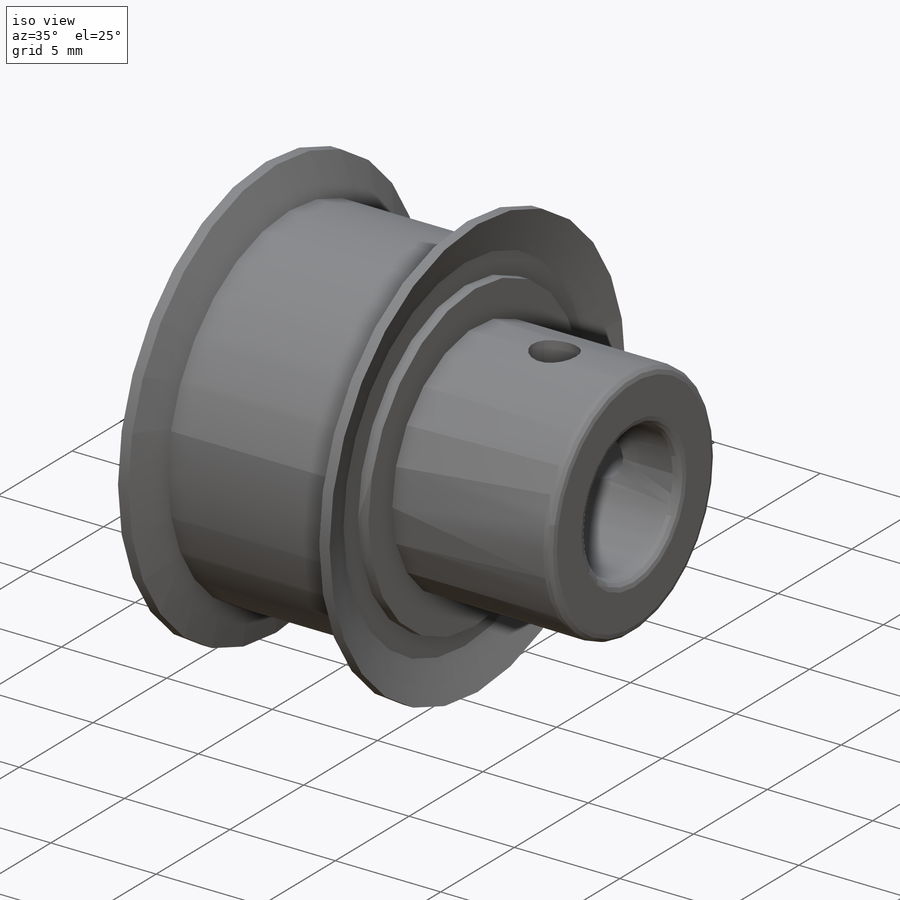
[diagram: iso view]
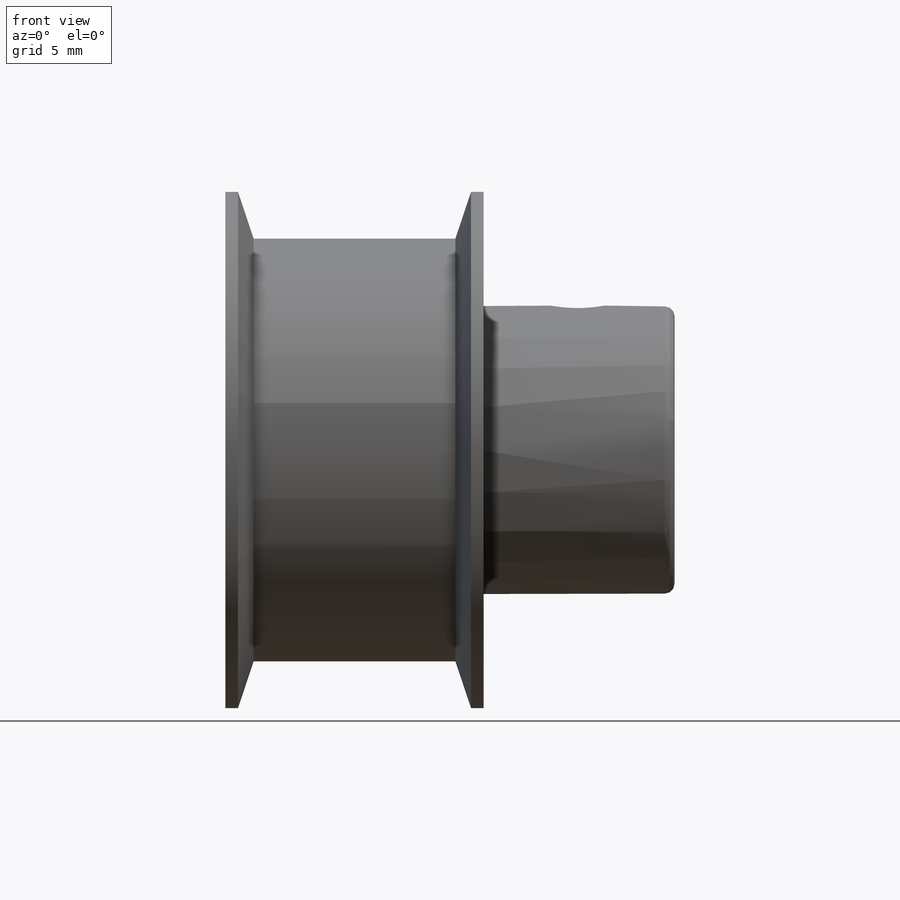
[diagram: front view]
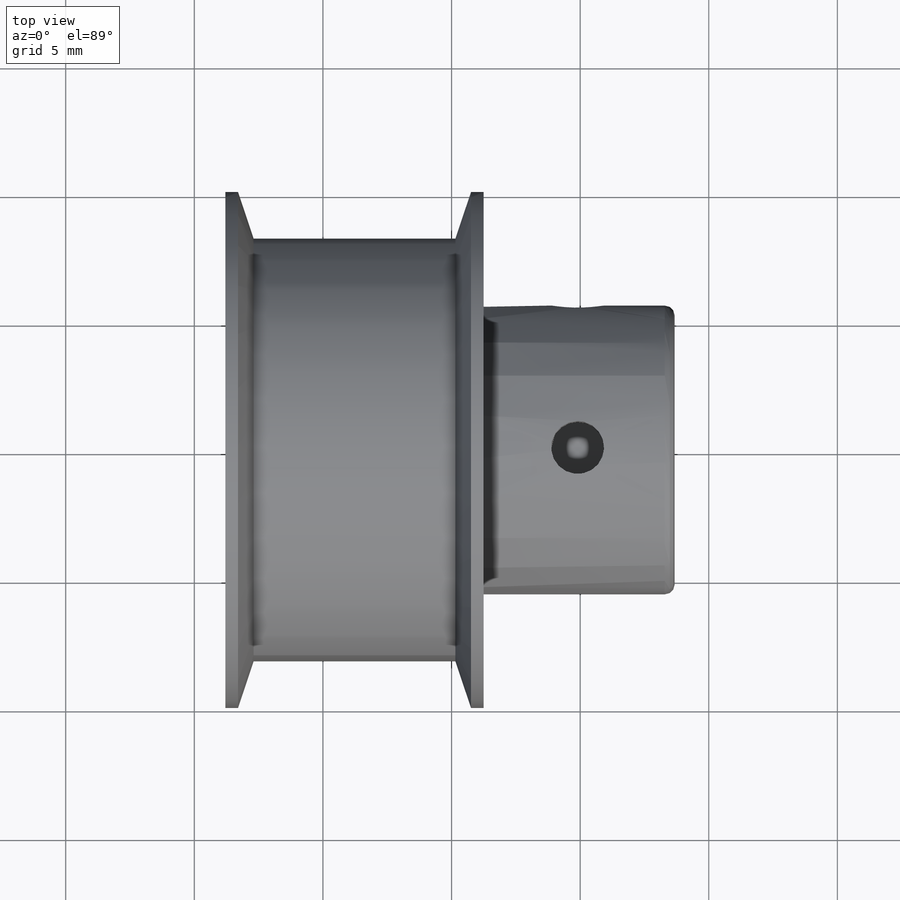
[diagram: top view]
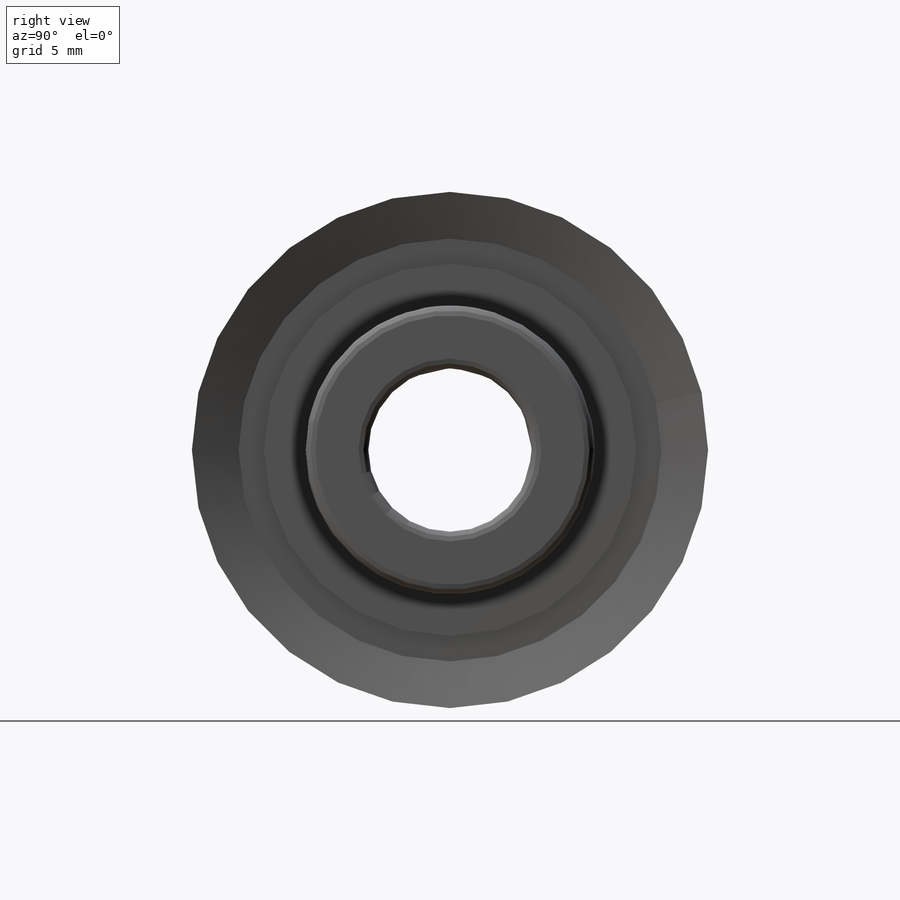
[diagram: right view]
SOLIDWORKS PART (.sldprt)
format: sldprt  version: not decoded by parser v0  size: 2,805,248 bytes
history: native  units: mm
features: sketch x5, revolve x2, thread x2, material x1, plane x1, cut_extrude x1, pattern_circular x1, fillet x1 (+13 scaffold rows collapsed)
feature tree (27):
  scaffold x13  (default folders/planes/origin — collapsed)
  material  "Material <não especificado>"
  sketch  "Sketch2"  dims[c1.Bore [A]=6.35mm c1.Length [E]=14.2748mm c1.Hub Diameter [F]=11.2268mm c1.Outside Diameter [B]=16.4338mm c1.Face Width [DD]=9.8044mm c1.D6=12.192mm c1.D1=~0.98044mm c1.Dimension [G]=~7.540625mm c2.Dimension [G]=~7.540625mm]
  revolve  "PULLEY"  Angle=360deg
  sketch  "Sketch5"  dims[c1.Pitch Diameter=17.1958mm c1.D1=~19.900019mm c1.D6=0.254mm c2.D1=~0.85725mm c2.D2=~11.731659mm c3.D2=5.0deg c3.D3=~1.672541mm c4.D3=14.0deg c4.D4=~11.771057mm c5.D4=10.0deg c5.D7=~0.401995mm c5.D8=~0.806357mm c5.D5=0.0mm]
  plane  "Plane1"  Offset=0mm
  sketch  "Pitch Dia Curve"
  sketch  "Sketch4"  dims[c1.Diameter [CC]=20.066mm c1.D2=~1.548359mm c1.D3=~0.701566mm c2.D3=40.0deg c2.D2=~0.129991mm c3.D2=175.0deg c3.Length [E]=17.4625mm]
  revolve  "Flange"  Angle=360deg
  sketch  "Sketch3"  dims[Diameter [DI]=2.0574mm]
  cut_extrude  "SCREW HOLE"  [1 undecoded]
  thread  "Cosmetic Thread1"  Diameter=2.57175mm  [1 undecoded]
  pattern_circular  "CirPattern1"  [2 undecoded]
  thread  "Cosmetic Thread2"  Diameter=2.57175mm  [1 undecoded]
  fillet  "Fillet1"  Radius=0.381mm
decode coverage: 9 of 12 modeling features carry decoded parameters
note: ~ marks probable driven/reference dimensions
note: 5 parameter values undecoded
note: suppression state not decoded; provenance and decode notes live in map.json
